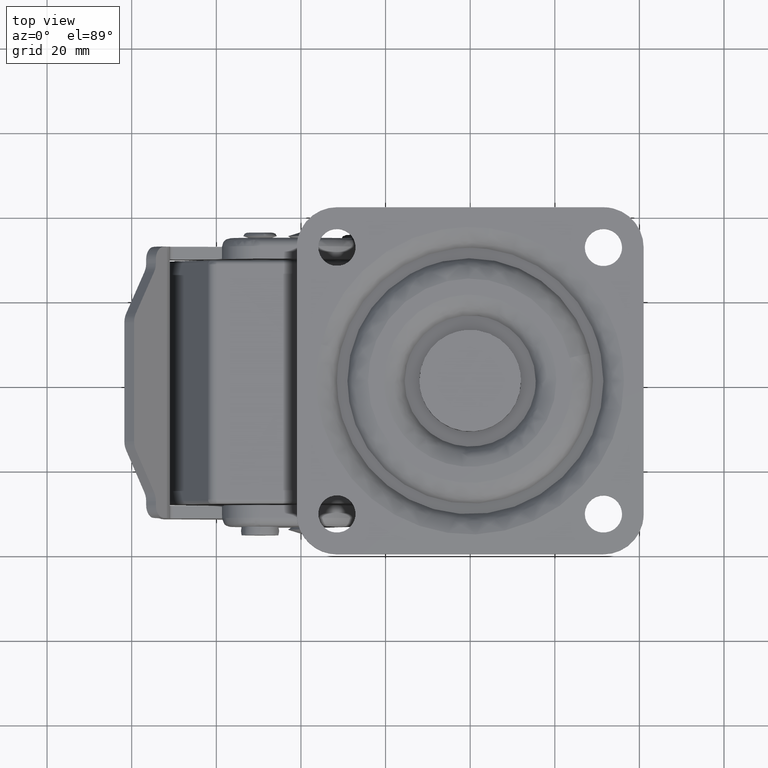
[diagram: clean part render]
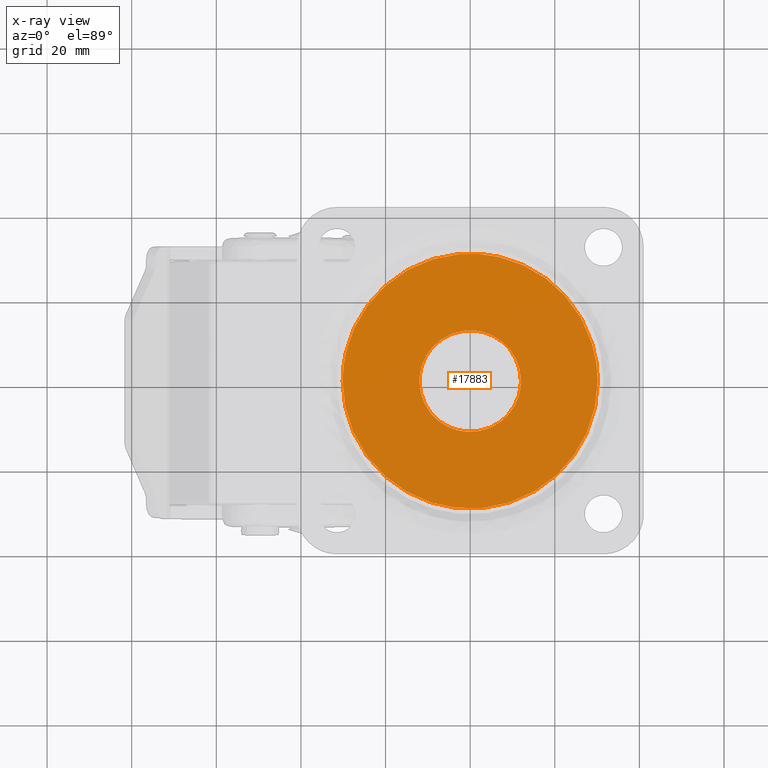
[diagram: x-ray — body ghosted, one internal face saturated and labeled with its STEP entity id]
A machine part, top view, then the same camera in x-ray: the body is ghosted and one INTERNAL B-rep face — a face not visible from any outside direction — is saturated and labeled: STEP entity #17883.
In plain terms, the highlighted face is a freeform B-spline surface patch.
Its self-contained STEP definition (entity closure, byte-faithful):
#16094=CARTESIAN_POINT('',(-0.732582474496823,-11.977617581057601,-6.999999999999901));
#16095=VERTEX_POINT('',#16094);
#16101=CARTESIAN_POINT('',(-12.0,0.0,-6.999999999999901));
#16102=VERTEX_POINT('',#16101);
#16103=CARTESIAN_POINT('',(-12.0,0.0,-6.999999999999901));
#16104=CARTESIAN_POINT('',(-12.0,-11.288472802719957,-6.999999999999900));
#16105=CARTESIAN_POINT('',(-0.732582474496823,-11.977617581057595,-6.999999999999901));
#16113=(BOUNDED_CURVE()B_SPLINE_CURVE(2,(#16103,#16104,#16105),.UNSPECIFIED.,.F.,.U.)B_SPLINE_CURVE_WITH_KNOTS((3,3),(0.500000000000000,0.739332962239704),.UNSPECIFIED.)CURVE()GEOMETRIC_REPRESENTATION_ITEM()RATIONAL_B_SPLINE_CURVE((1.0,0.719603993285818,0.976072041668350))REPRESENTATION_ITEM(''));
#16114=EDGE_CURVE('',#16102,#16095,#16113,.T.);
#16116=CARTESIAN_POINT('',(1.416405245588214,11.916114978475100,-6.999999999999901));
#16117=VERTEX_POINT('',#16116);
#16118=CARTESIAN_POINT('',(1.416405245588214,11.916114978475100,-6.999999999999901));
#16119=CARTESIAN_POINT('',(0.710686621232460,11.999999999999996,-6.999999999999901));
#16120=CARTESIAN_POINT('',(0.0,12.0,-6.999999999999901));
#16121=CARTESIAN_POINT('',(-12.0,12.0,-6.999999999999899));
#16122=CARTESIAN_POINT('',(-12.0,0.0,-6.999999999999901));
#16130=(BOUNDED_CURVE()B_SPLINE_CURVE(2,(#16118,#16119,#16120,#16121,#16122),.UNSPECIFIED.,.F.,.U.)B_SPLINE_CURVE_WITH_KNOTS((3,2,3),(0.229562552517708,0.250000000000000,0.500000000000000),.UNSPECIFIED.)CURVE()GEOMETRIC_REPRESENTATION_ITEM()RATIONAL_B_SPLINE_CURVE((0.956026909035223,0.976056040890323,1.0,0.707106781186548,1.0))REPRESENTATION_ITEM(''));
#16131=EDGE_CURVE('',#16117,#16102,#16130,.T.);
#16175=CARTESIAN_POINT('',(12.0,0.0,-6.999999999999901));
#16176=VERTEX_POINT('',#16175);
#16177=CARTESIAN_POINT('',(12.0,0.0,-6.999999999999901));
#16178=CARTESIAN_POINT('',(12.000000000000002,10.658099328710758,-6.999999999999900));
#16179=CARTESIAN_POINT('',(1.416405245588214,11.916114978475100,-6.999999999999901));
#16187=(BOUNDED_CURVE()B_SPLINE_CURVE(2,(#16177,#16178,#16179),.UNSPECIFIED.,.F.,.U.)B_SPLINE_CURVE_WITH_KNOTS((3,3),(0.0,0.229562552517708),.UNSPECIFIED.)CURVE()GEOMETRIC_REPRESENTATION_ITEM()RATIONAL_B_SPLINE_CURVE((1.0,0.731050740296225,0.956026909035223))REPRESENTATION_ITEM(''));
#16188=EDGE_CURVE('',#16176,#16117,#16187,.T.);
#16190=CARTESIAN_POINT('',(-0.732582474496823,-11.977617581057601,-6.999999999999901));
#16191=CARTESIAN_POINT('',(-0.366633159661826,-12.000000000000002,-6.999999999999901));
#16192=CARTESIAN_POINT('',(0.0,-12.0,-6.999999999999901));
#16193=CARTESIAN_POINT('',(12.0,-12.0,-6.999999999999899));
#16194=CARTESIAN_POINT('',(12.0,0.0,-6.999999999999901));
#16202=(BOUNDED_CURVE()B_SPLINE_CURVE(2,(#16190,#16191,#16192,#16193,#16194),.UNSPECIFIED.,.F.,.U.)B_SPLINE_CURVE_WITH_KNOTS((3,2,3),(0.739332962239705,0.750000000000000,1.0),.UNSPECIFIED.)CURVE()GEOMETRIC_REPRESENTATION_ITEM()RATIONAL_B_SPLINE_CURVE((0.976072041668352,0.987502787900731,1.0,0.707106781186548,1.0))REPRESENTATION_ITEM(''));
#16203=EDGE_CURVE('',#16095,#16176,#16202,.T.);
#17633=CARTESIAN_POINT('',(6.760896579439486,29.378218421306400,-6.999999999999696));
#17634=VERTEX_POINT('',#17633);
#17635=CARTESIAN_POINT('',(30.146134745329402,0.0,-6.999999999999700));
#17636=VERTEX_POINT('',#17635);
#17637=CARTESIAN_POINT('',(6.760896579439486,29.378218421306403,-6.999999999999696));
#17638=CARTESIAN_POINT('',(30.146134745329402,23.996504169522591,-6.999999999999699));
#17639=CARTESIAN_POINT('',(30.146134745329402,0.0,-6.999999999999700));
#17647=(BOUNDED_CURVE()B_SPLINE_CURVE(2,(#17637,#17638,#17639),.UNSPECIFIED.,.F.,.U.)B_SPLINE_CURVE_WITH_KNOTS((3,3),(0.288352912383106,0.500000000000000),.UNSPECIFIED.)CURVE()GEOMETRIC_REPRESENTATION_ITEM()RATIONAL_B_SPLINE_CURVE((0.923920098759205,0.752040013021580,1.0))REPRESENTATION_ITEM(''));
#17648=EDGE_CURVE('',#17634,#17636,#17647,.T.);
#17712=CARTESIAN_POINT('',(-29.378218421306411,6.760896579439491,-6.999999999999696));
#17713=VERTEX_POINT('',#17712);
#17727=CARTESIAN_POINT('',(-30.146134745329402,0.0,-6.999999999999700));
#17728=VERTEX_POINT('',#17727);
#17729=CARTESIAN_POINT('',(-30.146134745329402,0.0,-6.999999999999700));
#17730=CARTESIAN_POINT('',(-30.146134745329409,3.424059035316358,-6.999999999999700));
#17731=CARTESIAN_POINT('',(-29.378218421306403,6.760896579439491,-6.999999999999696));
#17739=(BOUNDED_CURVE()B_SPLINE_CURVE(2,(#17729,#17730,#17731),.UNSPECIFIED.,.F.,.U.)B_SPLINE_CURVE_WITH_KNOTS((3,3),(0.0,0.038352912383106),.UNSPECIFIED.)CURVE()GEOMETRIC_REPRESENTATION_ITEM()RATIONAL_B_SPLINE_CURVE((1.0,0.955066768164967,0.923920098759205))REPRESENTATION_ITEM(''));
#17740=EDGE_CURVE('',#17728,#17713,#17739,.T.);
#17742=CARTESIAN_POINT('',(30.146134745329402,0.0,-6.999999999999700));
#17743=CARTESIAN_POINT('',(30.146134745329398,-30.146134745329398,-6.999999999999701));
#17744=CARTESIAN_POINT('',(0.0,-30.146134745329402,-6.999999999999700));
#17745=CARTESIAN_POINT('',(-30.146134745329398,-30.146134745329398,-6.999999999999701));
#17746=CARTESIAN_POINT('',(-30.146134745329402,0.0,-6.999999999999700));
#17754=(BOUNDED_CURVE()B_SPLINE_CURVE(2,(#17742,#17743,#17744,#17745,#17746),.UNSPECIFIED.,.F.,.U.)B_SPLINE_CURVE_WITH_KNOTS((3,2,3),(0.500000000000000,0.750000000000000,1.0),.UNSPECIFIED.)CURVE()GEOMETRIC_REPRESENTATION_ITEM()RATIONAL_B_SPLINE_CURVE((1.0,0.707106781186547,1.0,0.707106781186547,1.0))REPRESENTATION_ITEM(''));
#17755=EDGE_CURVE('',#17636,#17728,#17754,.T.);
#17777=CARTESIAN_POINT('',(-29.378218421306403,6.760896579439491,-6.999999999999696));
#17778=CARTESIAN_POINT('',(-23.996504169522577,30.146134745329402,-6.999999999999700));
#17779=CARTESIAN_POINT('',(0.0,30.146134745329402,-6.999999999999700));
#17780=CARTESIAN_POINT('',(3.424059035316372,30.146134745329402,-6.999999999999700));
#17781=CARTESIAN_POINT('',(6.760896579439486,29.378218421306411,-6.999999999999696));
#17789=(BOUNDED_CURVE()B_SPLINE_CURVE(2,(#17777,#17778,#17779,#17780,#17781),.UNSPECIFIED.,.F.,.U.)B_SPLINE_CURVE_WITH_KNOTS((3,2,3),(0.038352912383106,0.250000000000000,0.288352912383106),.UNSPECIFIED.)CURVE()GEOMETRIC_REPRESENTATION_ITEM()RATIONAL_B_SPLINE_CURVE((0.923920098759205,0.752040013021580,1.0,0.955066768164967,0.923920098759205))REPRESENTATION_ITEM(''));
#17790=EDGE_CURVE('',#17713,#17634,#17789,.T.);
#17866=CARTESIAN_POINT('',(-33.157734055510382,-33.157522680276543,-6.999999999999910));
#17867=CARTESIAN_POINT('',(33.157735133620172,-33.157522680276543,-6.999999999999910));
#17868=CARTESIAN_POINT('',(-33.157734055510382,33.153292022151120,-6.999999999999910));
#17869=CARTESIAN_POINT('',(33.157735133620172,33.153292022151120,-6.999999999999910));
#17870=B_SPLINE_SURFACE_WITH_KNOTS('',1,1,((#17866,#17868),(#17867,#17869)),.UNSPECIFIED.,.F.,.F.,.U.,(2,2),(2,2),(0.0,66.315469189130539),(0.0,66.310814702427663),.UNSPECIFIED.);
#17871=ORIENTED_EDGE('',*,*,#17740,.T.);
#17872=ORIENTED_EDGE('',*,*,#17790,.T.);
#17873=ORIENTED_EDGE('',*,*,#17648,.T.);
#17874=ORIENTED_EDGE('',*,*,#17755,.T.);
#17875=EDGE_LOOP('',(#17871,#17872,#17873,#17874));
#17876=FACE_OUTER_BOUND('',#17875,.T.);
#17877=ORIENTED_EDGE('',*,*,#16114,.T.);
#17878=ORIENTED_EDGE('',*,*,#16203,.T.);
#17879=ORIENTED_EDGE('',*,*,#16188,.T.);
#17880=ORIENTED_EDGE('',*,*,#16131,.T.);
#17881=EDGE_LOOP('',(#17877,#17878,#17879,#17880));
#17882=FACE_BOUND('',#17881,.T.);
#17883=ADVANCED_FACE('',(#17876,#17882),#17870,.F.);